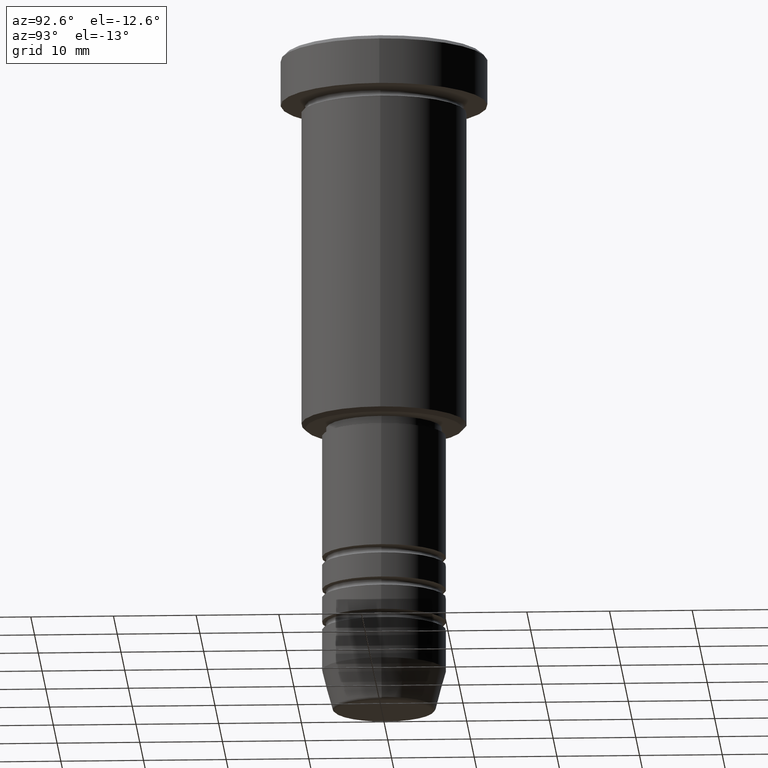
[diagram: clean part render]
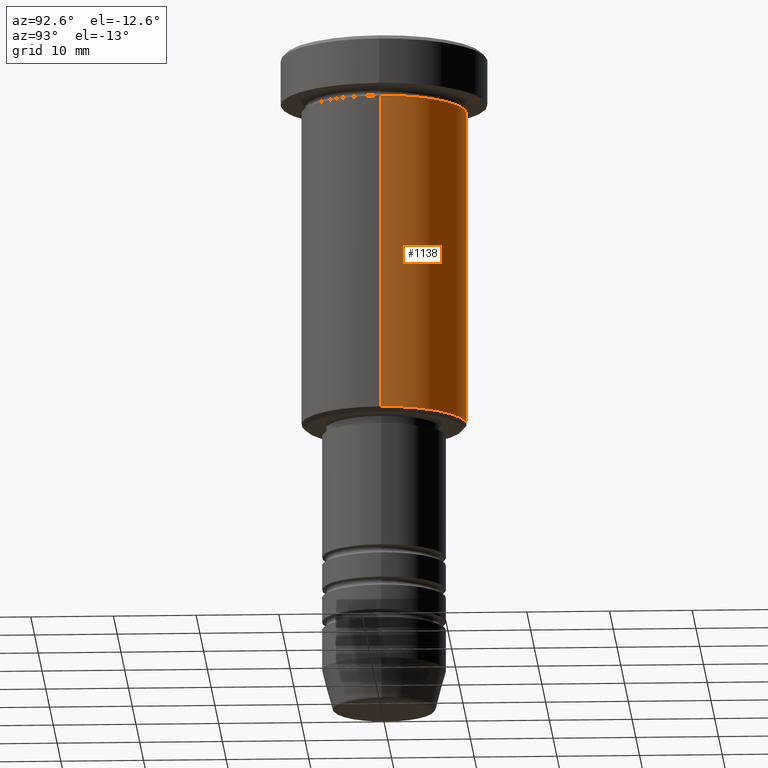
[diagram: same view with one face highlighted and labeled with its STEP entity id]
A machine part, auxiliary view. The second image highlights one B-rep face of the part: STEP entity #1138.
In plain terms, the highlighted cylindrical surface (partial cylindrical patch) has radius 10 mm, axis along (-0, -0, 1).
Its self-contained STEP definition (entity closure, byte-faithful):
#74 = DIRECTION ( 'NONE',  ( -0.000000000000000000, -0.000000000000000000, 1.000000000000000000 ) ) ;
#97 = FACE_OUTER_BOUND ( 'NONE', #303, .T. ) ;
#138 = CARTESIAN_POINT ( 'NONE',  ( -10.00000000000000000, 1.224646799147353256E-15, -6.999999999999996447 ) ) ;
#152 = EDGE_CURVE ( 'NONE', #217, #567, #619, .T. ) ;
#167 = ORIENTED_EDGE ( 'NONE', *, *, #152, .F. ) ;
#217 = VERTEX_POINT ( 'NONE', #1055 ) ;
#223 = VECTOR ( 'NONE', #1022, 1000.000000000000000 ) ;
#229 = DIRECTION ( 'NONE',  ( -1.000000000000000000, 0.000000000000000000, 0.000000000000000000 ) ) ;
#289 = LINE ( 'NONE', #652, #223 ) ;
#291 = ORIENTED_EDGE ( 'NONE', *, *, #1161, .T. ) ;
#303 = EDGE_LOOP ( 'NONE', ( #1028, #291, #167, #495 ) ) ;
#371 = DIRECTION ( 'NONE',  ( -0.000000000000000000, -0.000000000000000000, 1.000000000000000000 ) ) ;
#455 = VECTOR ( 'NONE', #1084, 1000.000000000000000 ) ;
#460 = LINE ( 'NONE', #730, #455 ) ;
#495 = ORIENTED_EDGE ( 'NONE', *, *, #1081, .F. ) ;
#546 = EDGE_CURVE ( 'NONE', #780, #694, #741, .T. ) ;
#567 = VERTEX_POINT ( 'NONE', #138 ) ;
#613 = CARTESIAN_POINT ( 'NONE',  ( 0.000000000000000000, 0.000000000000000000, 0.000000000000000000 ) ) ;
#619 = CIRCLE ( 'NONE', #982, 10.00000000000000000 ) ;
#621 = CARTESIAN_POINT ( 'NONE',  ( 10.00000000000000000, 0.000000000000000000, -45.50000000000000000 ) ) ;
#652 = CARTESIAN_POINT ( 'NONE',  ( 10.00000000000000000, 0.000000000000000000, 0.000000000000000000 ) ) ;
#674 = DIRECTION ( 'NONE',  ( -0.000000000000000000, -0.000000000000000000, 1.000000000000000000 ) ) ;
#694 = VERTEX_POINT ( 'NONE', #704 ) ;
#704 = CARTESIAN_POINT ( 'NONE',  ( -10.00000000000000000, 1.224646799147353256E-15, -45.50000000000000000 ) ) ;
#707 = CYLINDRICAL_SURFACE ( 'NONE', #1013, 10.00000000000000000 ) ;
#720 = AXIS2_PLACEMENT_3D ( 'NONE', #948, #674, #229 ) ;
#730 = CARTESIAN_POINT ( 'NONE',  ( -10.00000000000000000, 1.224646799147353256E-15, 0.000000000000000000 ) ) ;
#741 = CIRCLE ( 'NONE', #720, 10.00000000000000000 ) ;
#780 = VERTEX_POINT ( 'NONE', #621 ) ;
#804 = DIRECTION ( 'NONE',  ( 1.000000000000000000, 0.000000000000000000, 0.000000000000000000 ) ) ;
#948 = CARTESIAN_POINT ( 'NONE',  ( 0.000000000000000000, 0.000000000000000000, -45.50000000000000000 ) ) ;
#982 = AXIS2_PLACEMENT_3D ( 'NONE', #1016, #371, #1094 ) ;
#1013 = AXIS2_PLACEMENT_3D ( 'NONE', #613, #74, #804 ) ;
#1016 = CARTESIAN_POINT ( 'NONE',  ( 0.000000000000000000, 0.000000000000000000, -6.999999999999996447 ) ) ;
#1022 = DIRECTION ( 'NONE',  ( -0.000000000000000000, -0.000000000000000000, 1.000000000000000000 ) ) ;
#1028 = ORIENTED_EDGE ( 'NONE', *, *, #546, .T. ) ;
#1055 = CARTESIAN_POINT ( 'NONE',  ( 10.00000000000000000, 0.000000000000000000, -6.999999999999996447 ) ) ;
#1081 = EDGE_CURVE ( 'NONE', #780, #217, #289, .T. ) ;
#1084 = DIRECTION ( 'NONE',  ( -0.000000000000000000, -0.000000000000000000, 1.000000000000000000 ) ) ;
#1094 = DIRECTION ( 'NONE',  ( 1.000000000000000000, 0.000000000000000000, 0.000000000000000000 ) ) ;
#1138 = ADVANCED_FACE ( 'NONE', ( #97 ), #707, .T. ) ;
#1161 = EDGE_CURVE ( 'NONE', #694, #567, #460, .T. ) ;